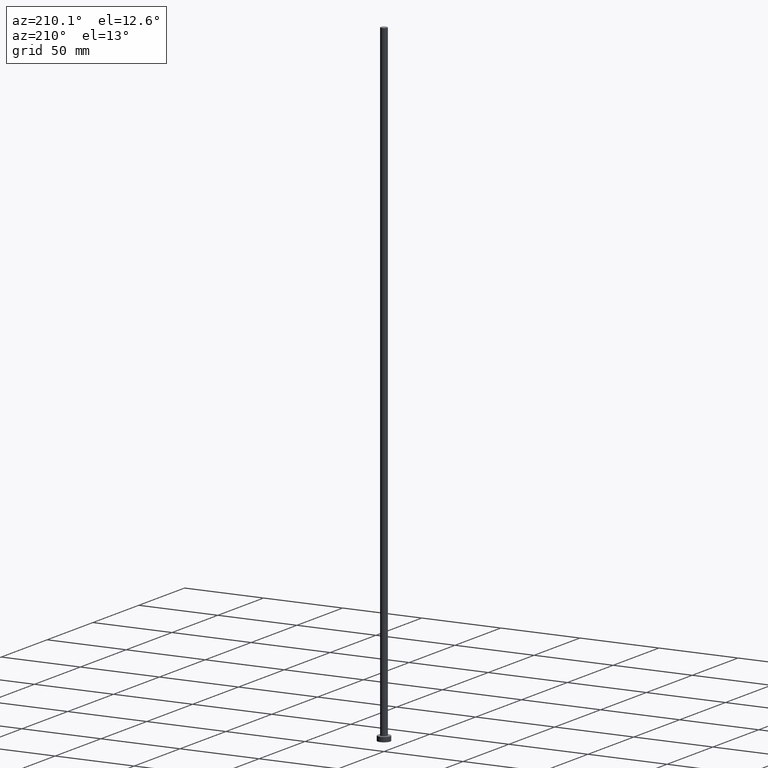
[diagram: clean part render]
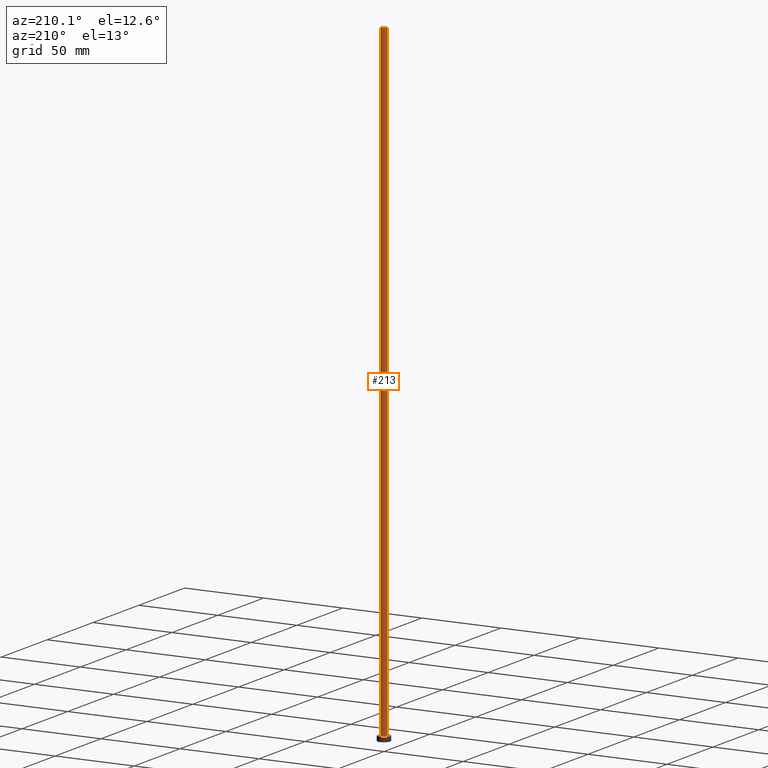
[diagram: same view with one face highlighted and labeled with its STEP entity id]
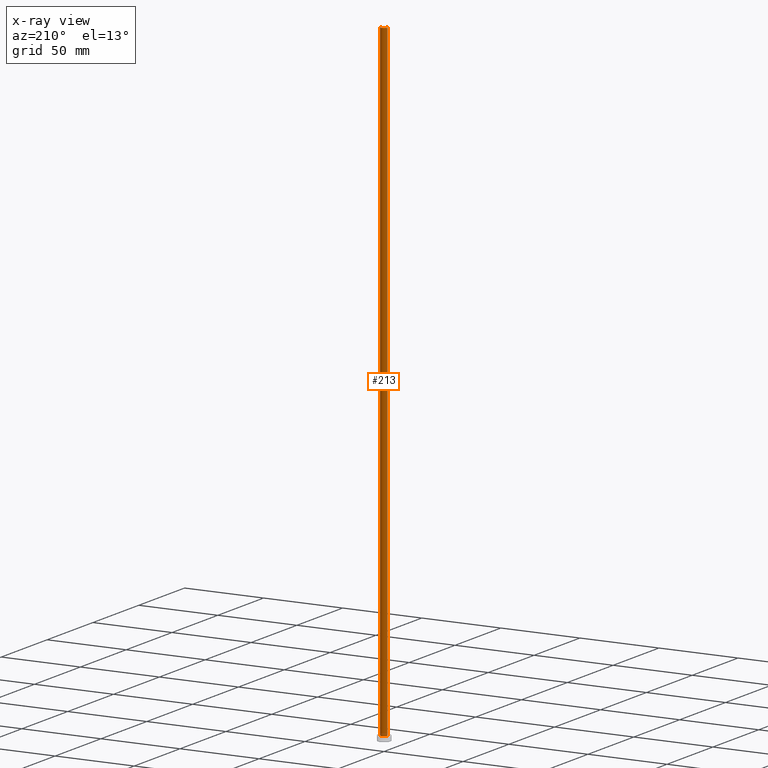
[diagram: x-ray of the same camera — body ghosted, the highlighted face saturated]
A machine part, auxiliary view. The second image highlights one B-rep face of the part: STEP entity #213.
The next image is the same camera in x-ray: the body ghosted, the highlighted face saturated — about 0% of this face is hidden behind the body in this view.
In plain terms, the highlighted cylindrical surface (edge-blend (fillet) strip) has radius 2.1 mm, axis along (-0, -0, -1).
Its self-contained STEP definition (entity closure, byte-faithful):
#24 = CARTESIAN_POINT ( 'NONE',  ( 0.000000000000000000, 0.000000000000000000, 400.0000000000000000 ) ) ;
#30 = EDGE_LOOP ( 'NONE', ( #54, #130, #168, #228 ) ) ;
#46 = CARTESIAN_POINT ( 'NONE',  ( 0.000000000000000000, 0.000000000000000000, 3.000000000000000000 ) ) ;
#48 = DIRECTION ( 'NONE',  ( -0.000000000000000000, -0.000000000000000000, -1.000000000000000000 ) ) ;
#49 = CARTESIAN_POINT ( 'NONE',  ( -2.100000000000000089, 0.000000000000000000, 400.0000000000000000 ) ) ;
#54 = ORIENTED_EDGE ( 'NONE', *, *, #226, .F. ) ;
#77 = DIRECTION ( 'NONE',  ( -0.000000000000000000, -0.000000000000000000, -1.000000000000000000 ) ) ;
#81 = CARTESIAN_POINT ( 'NONE',  ( 2.100000000000000089, 2.571758278209441957E-16, 400.0000000000000000 ) ) ;
#83 = EDGE_CURVE ( 'NONE', #112, #110, #194, .T. ) ;
#84 = CIRCLE ( 'NONE', #109, 2.100000000000000089 ) ;
#95 = CARTESIAN_POINT ( 'NONE',  ( -2.100000000000000089, 0.000000000000000000, 400.0000000000000000 ) ) ;
#100 = CYLINDRICAL_SURFACE ( 'NONE', #214, 2.100000000000000089 ) ;
#103 = CARTESIAN_POINT ( 'NONE',  ( 2.100000000000000089, 2.571758278209441957E-16, 3.000000000000000000 ) ) ;
#106 = CARTESIAN_POINT ( 'NONE',  ( 0.000000000000000000, 0.000000000000000000, 400.0000000000000000 ) ) ;
#109 = AXIS2_PLACEMENT_3D ( 'NONE', #46, #175, #177 ) ;
#110 = VERTEX_POINT ( 'NONE', #224 ) ;
#112 = VERTEX_POINT ( 'NONE', #49 ) ;
#130 = ORIENTED_EDGE ( 'NONE', *, *, #133, .T. ) ;
#133 = EDGE_CURVE ( 'NONE', #151, #254, #241, .T. ) ;
#136 = CIRCLE ( 'NONE', #232, 2.100000000000000089 ) ;
#148 = CARTESIAN_POINT ( 'NONE',  ( 2.100000000000000089, 2.571758278209441957E-16, 400.0000000000000000 ) ) ;
#149 = DIRECTION ( 'NONE',  ( -0.000000000000000000, -0.000000000000000000, -1.000000000000000000 ) ) ;
#151 = VERTEX_POINT ( 'NONE', #81 ) ;
#168 = ORIENTED_EDGE ( 'NONE', *, *, #176, .T. ) ;
#175 = DIRECTION ( 'NONE',  ( 0.000000000000000000, 0.000000000000000000, 1.000000000000000000 ) ) ;
#176 = EDGE_CURVE ( 'NONE', #254, #110, #84, .T. ) ;
#177 = DIRECTION ( 'NONE',  ( 1.000000000000000000, 0.000000000000000000, 0.000000000000000000 ) ) ;
#179 = DIRECTION ( 'NONE',  ( 0.000000000000000000, 0.000000000000000000, 1.000000000000000000 ) ) ;
#194 = LINE ( 'NONE', #95, #220 ) ;
#203 = DIRECTION ( 'NONE',  ( 1.000000000000000000, 0.000000000000000000, 0.000000000000000000 ) ) ;
#213 = ADVANCED_FACE ( 'NONE', ( #223 ), #100, .T. ) ;
#214 = AXIS2_PLACEMENT_3D ( 'NONE', #24, #48, #239 ) ;
#218 = VECTOR ( 'NONE', #149, 1000.000000000000000 ) ;
#220 = VECTOR ( 'NONE', #77, 1000.000000000000000 ) ;
#223 = FACE_OUTER_BOUND ( 'NONE', #30, .T. ) ;
#224 = CARTESIAN_POINT ( 'NONE',  ( -2.100000000000000089, 0.000000000000000000, 3.000000000000000000 ) ) ;
#226 = EDGE_CURVE ( 'NONE', #151, #112, #136, .T. ) ;
#228 = ORIENTED_EDGE ( 'NONE', *, *, #83, .F. ) ;
#232 = AXIS2_PLACEMENT_3D ( 'NONE', #106, #179, #203 ) ;
#239 = DIRECTION ( 'NONE',  ( -1.000000000000000000, 0.000000000000000000, 0.000000000000000000 ) ) ;
#241 = LINE ( 'NONE', #148, #218 ) ;
#254 = VERTEX_POINT ( 'NONE', #103 ) ;